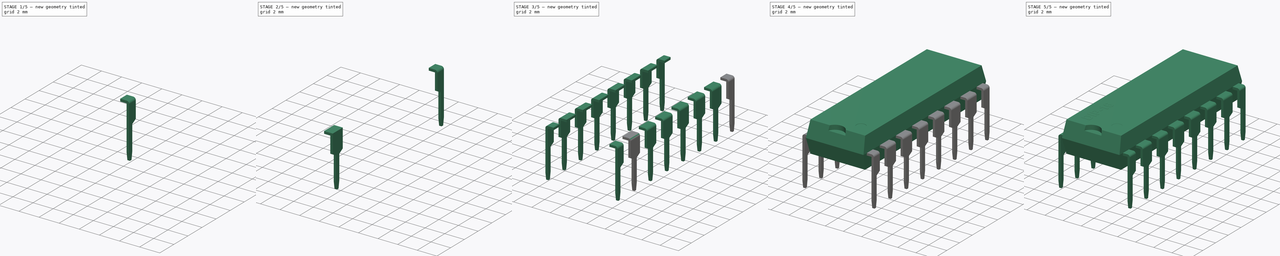
[diagram: build sequence overview — one tinted view per stage of 5, left to right]
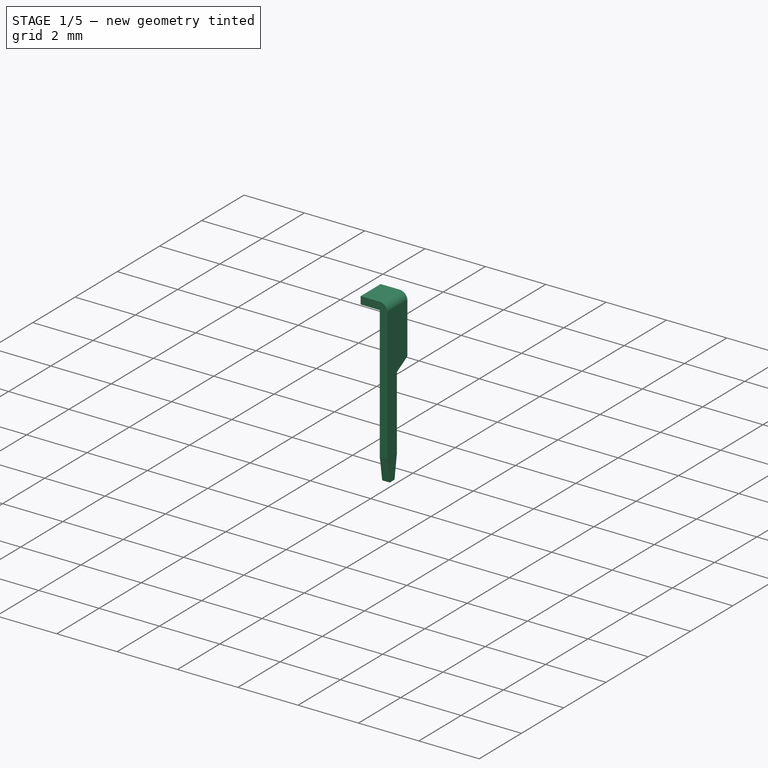
[diagram: stage 1 of 5 — iso view after this stage's code; geometry added in this stage tinted green]
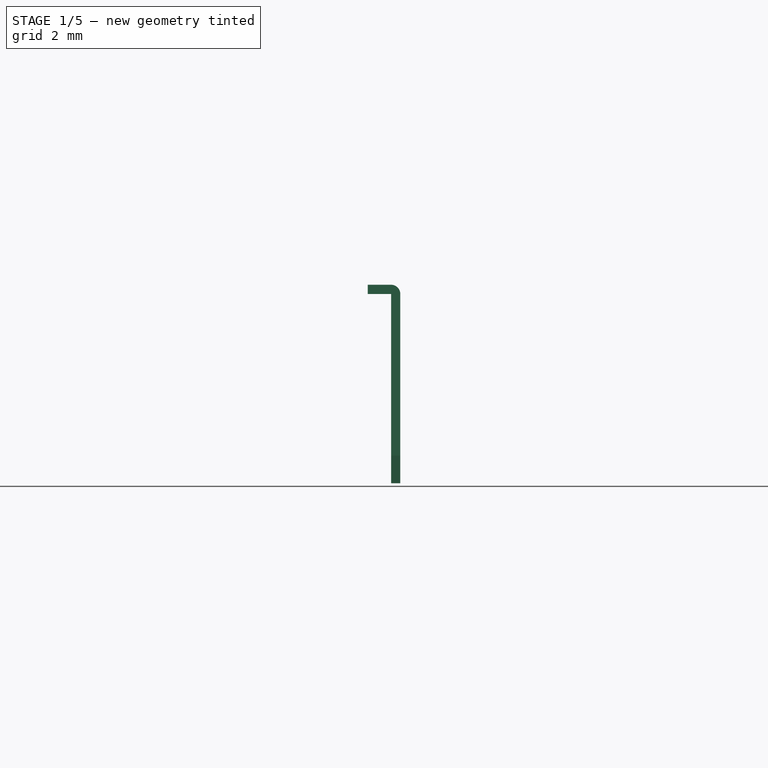
[diagram: stage 1 of 5 — front view after this stage's code; geometry added in this stage tinted green]
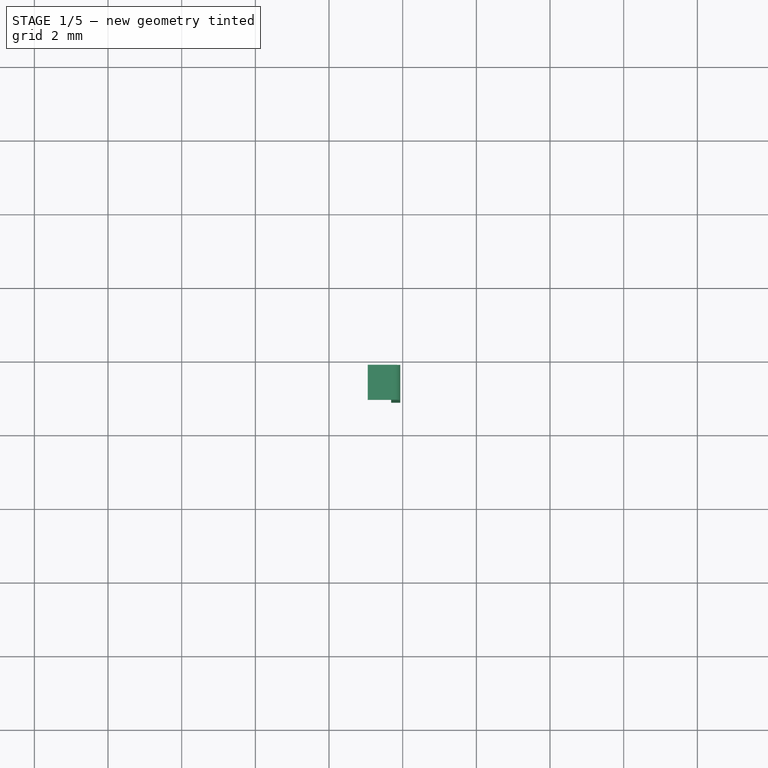
[diagram: stage 1 of 5 — top view after this stage's code; geometry added in this stage tinted green]
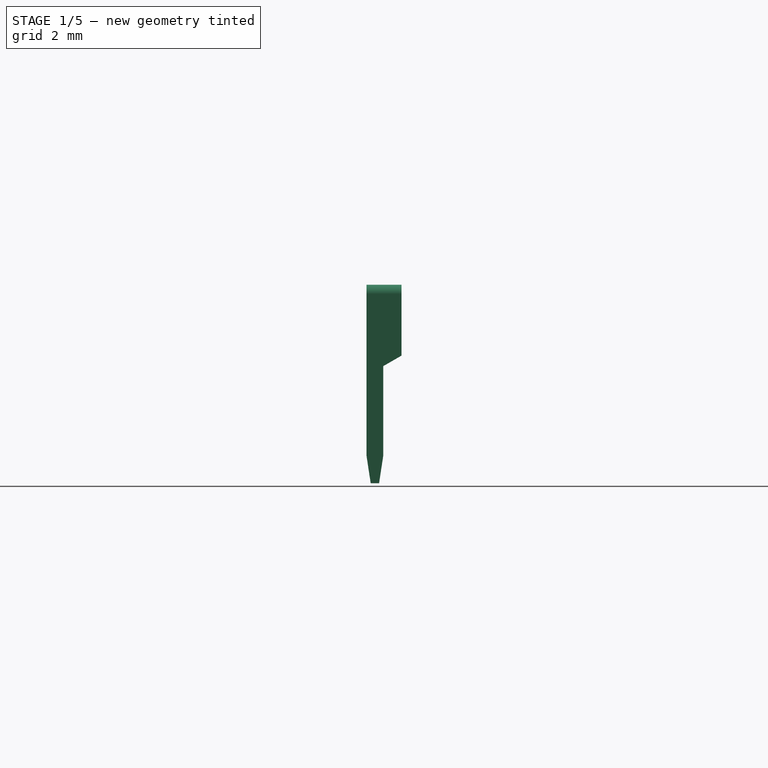
[diagram: stage 1 of 5 — right view after this stage's code; geometry added in this stage tinted green]
FCSTD DOCUMENT  (FreeCAD 0.19R16945 (Git))
Label: Package_N_DIP-16
License: All rights reserved
LicenseURL: http://en.wikipedia.org/wiki/All_rights_reserved
objects: Sketcher::SketchObject×10, PartDesign::Pad×5, PartDesign::Body×4, PartDesign::Pocket×2, PartDesign::Fillet×2, Part::FeaturePython×2, Part::MultiFuse×2, PartDesign::AdditiveLoft×1, PartDesign::ShapeBinder×1, Part::Part2DObjectPython×1, Part::Extrusion×1, Part::Mirroring×1
note: 40 computed .brp shape members not serialized (recipe doc carries the construction recipe); baked Part::Feature solids carry a one-line shape summary decoded from their .brp

FEATURE [Sketcher::SketchObject] Sketch006
  AttachmentOffset = pos=(-8.89,0,3.81) rot=(0,0,1;0rad)
  MapMode = 5
  Placement = pos=(3.81,-8.89,2.8e-15) rot=(0.57735,0.57735,0.57735;2.0944rad)
  Support = -> [YZ_Plane002]
  expr: AttachmentOffset.Base.z = 7.62 / 2
  expr: AttachmentOffset.Base.x = -(2.54 / 2) - 3 * 2.54
  expr: Constraints[19] = Sketch004.Constraints[23]
  expr: Constraints[22] = (0.38 + 0.53) / 4
  expr: Constraints[17] = (0.76 + 1.14) / 2
  expr: Constraints[5] = Sketch004.Constraints[5]
  expr: Constraints[2] = Sketch004.Constraints[2]
  sketch-geometry (9):
    g0: LineSegment StartX=-0.2275 StartY=-3e-16 StartZ=0 EndX=-0.2275 EndY=-2.43 EndZ=0
    g1: LineSegment StartX=0.2275 StartY=-2.43 StartZ=0 EndX=0.2275 EndY=0 EndZ=0
    g2: LineSegment StartX=-0.2275 StartY=2.21 StartZ=0 EndX=0.7225 EndY=2.21 EndZ=0
    g3: LineSegment StartX=-0.2275 StartY=-2.43 StartZ=0 EndX=-0.11375 EndY=-3.18 EndZ=0
    g4: LineSegment StartX=-0.11375 StartY=-3.18 StartZ=0 EndX=0.11375 EndY=-3.18 EndZ=0
    g5: LineSegment StartX=0.11375 StartY=-3.18 StartZ=0 EndX=0.2275 EndY=-2.43 EndZ=0
    g6: LineSegment StartX=-0.2275 StartY=-3e-16 StartZ=0 EndX=-0.2275 EndY=2.21 EndZ=0
    g7: LineSegment StartX=0.2275 StartY=0 StartZ=0 EndX=0.7225 EndY=0.285788 EndZ=0
    g8: LineSegment StartX=0.7225 StartY=0.285788 StartZ=0 EndX=0.7225 EndY=2.21 EndZ=0
  constraints (25):
    c: Vertical(g0)
    c: Vertical(g1)
    c: DistanceX(g0,g1) = 0.455
    c: Equal(g0,g1)
    c: PointOnObject(g7,g-1)
    c: DistanceY(g0,g2) = 2.21
    c: Symmetric(g1,g0,g-2)
    c: Coincident(g0,g3)
    c: Coincident(g3,g4)
    c: Coincident(g4,g5)
    c: Coincident(g5,g1)
    c: Symmetric(g4,g3,g-2)
    c: Coincident(g7,g8)
    c: Coincident(g8,g2)
    c: Vertical(g8)
    c: Vertical(g6)
    c: Coincident(g2,g6)
    c: DistanceX(g2,g2) = 0.95
    c: Coincident(g1,g7)
    c: DistanceY(g3,g0) = 3.18
    c: Coincident(g6,g0)
    c: Angle(g-1,g7) = 0.523599
    c: DistanceX(g4,g4) = 0.2275
    c: DistanceY(g4,g1) = 0.75
    c: Horizontal(g2)
FEATURE [PartDesign::Pad] Pad002
  Length = 0.25
  Length2 = 100
  Midplane = true
  Placement = pos=(0,0,0) rot=(0.57735,0.57735,0.57735;2.0944rad)
  Profile = -> Sketch006
  Type = 0
FEATURE [PartDesign::Pad] Pad004
  BaseFeature = -> Pad002
  Length = 0.635
  Length2 = 100
  Placement = pos=(0,0,0) rot=(0.57735,0.57735,0.57735;2.0944rad)
  Profile = -> Sketch007
  Refine = true
  Type = 0
FEATURE [PartDesign::Fillet] Fillet
  Base = -> Pad004 [Edge17]
  BaseFeature = -> Pad004
  Placement = pos=(0,0,0) rot=(0.57735,0.57735,0.57735;2.0944rad)
  Radius = 0.25
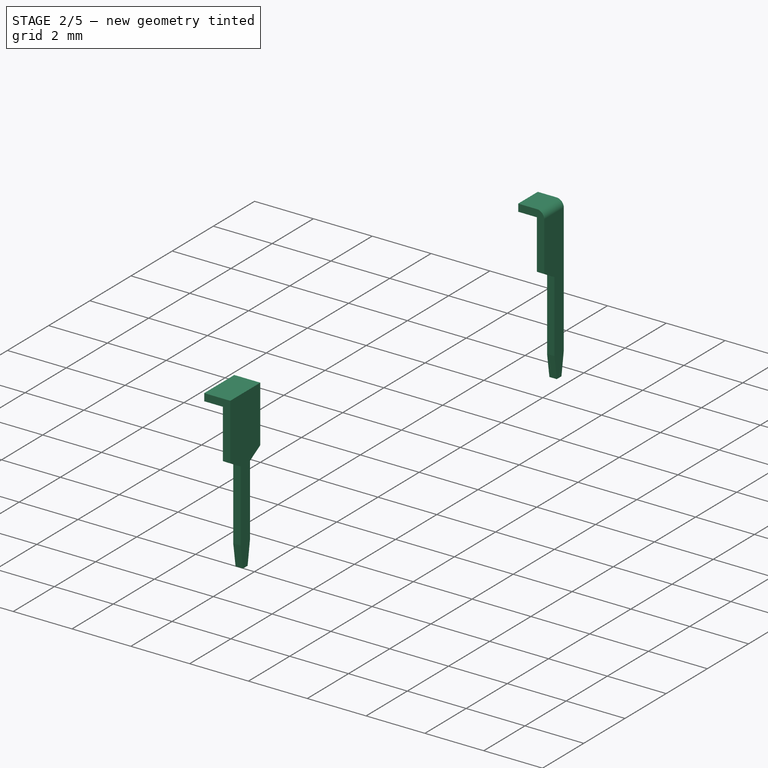
[diagram: stage 2 of 5 — iso view after this stage's code; geometry added in this stage tinted green]
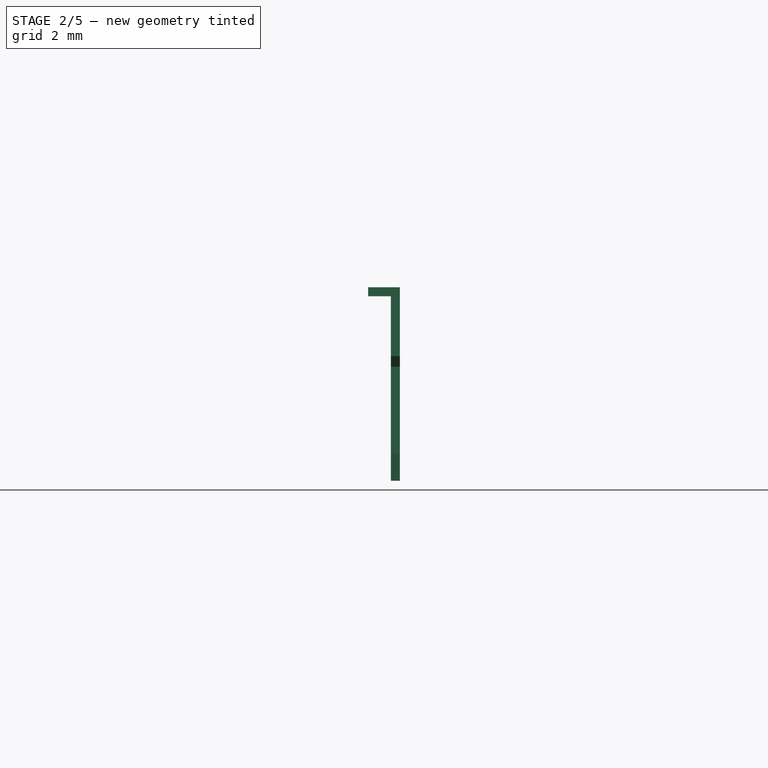
[diagram: stage 2 of 5 — front view after this stage's code; geometry added in this stage tinted green]
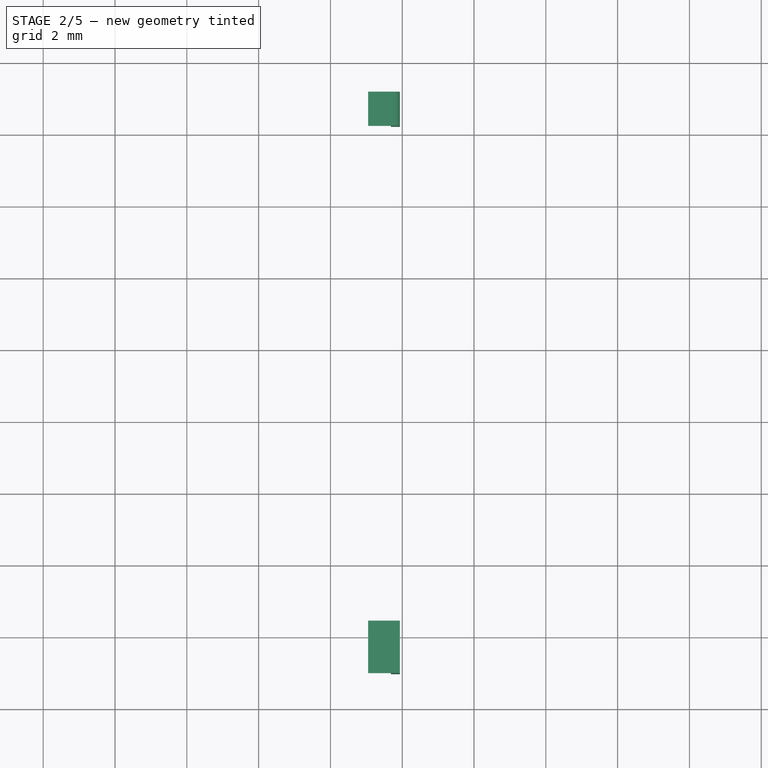
[diagram: stage 2 of 5 — top view after this stage's code; geometry added in this stage tinted green]
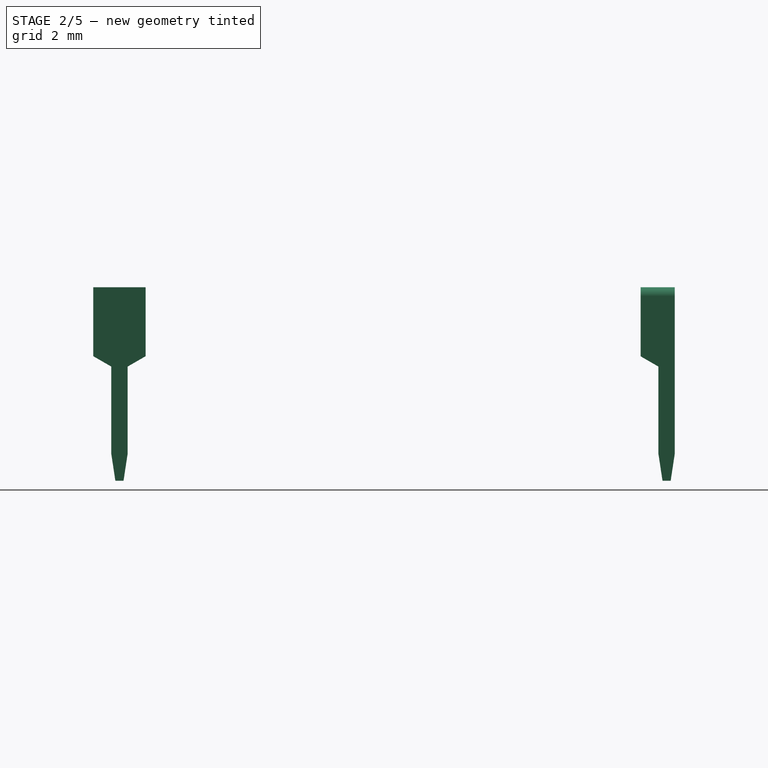
[diagram: stage 2 of 5 — right view after this stage's code; geometry added in this stage tinted green]
FEATURE [Sketcher::SketchObject] Sketch004
  AttachmentOffset = pos=(-6.35,0,3.81) rot=(0,0,1;0rad)
  MapMode = 5
  Placement = pos=(3.81,-6.35,2.3e-15) rot=(0.57735,0.57735,0.57735;2.0944rad)
  Support = -> [YZ_Plane001]
  expr: AttachmentOffset.Base.x = -(2.5 * 2.54)
  expr: Constraints[25] = (0.38 + 0.53) / 4
  expr: Constraints[18] = (1.14 + 1.78) / 2
  expr: AttachmentOffset.Base.z = 7.62 / 2
  expr: Constraints[5] = 0.51 + 3.4 / 2
  expr: Constraints[2] = (0.38 + 0.53) / 2
  sketch-geometry (10):
    g0: LineSegment StartX=-0.2275 StartY=2e-16 StartZ=0 EndX=-0.2275 EndY=-2.43 EndZ=0
    g1: LineSegment StartX=0.2275 StartY=-2.43 StartZ=0 EndX=0.2275 EndY=0 EndZ=0
    g2: LineSegment StartX=-0.73 StartY=2.21 StartZ=0 EndX=0.73 EndY=2.21 EndZ=0
    g3: LineSegment StartX=-0.2275 StartY=-2.43 StartZ=0 EndX=-0.11375 EndY=-3.18 EndZ=0
    g4: LineSegment StartX=-0.11375 StartY=-3.18 StartZ=0 EndX=0.11375 EndY=-3.18 EndZ=0
    g5: LineSegment StartX=0.11375 StartY=-3.18 StartZ=0 EndX=0.2275 EndY=-2.43 EndZ=0
    g6: LineSegment StartX=-0.2275 StartY=2e-16 StartZ=0 EndX=-0.73 EndY=0.290119 EndZ=0
    g7: LineSegment StartX=-0.73 StartY=0.290119 StartZ=0 EndX=-0.73 EndY=2.21 EndZ=0
    g8: LineSegment StartX=0.2275 StartY=0 StartZ=0 EndX=0.73 EndY=0.290119 EndZ=0
    g9: LineSegment StartX=0.73 StartY=0.290119 StartZ=0 EndX=0.73 EndY=2.21 EndZ=0
  constraints (27):
    c: Vertical(g0)
    c: Vertical(g1)
    c: DistanceX(g0,g1) = 0.455
    c: Equal(g0,g1)
    c: PointOnObject(g8,g-1)
    c: DistanceY(g6,g2) = 2.21
    c: Symmetric(g1,g0,g-2)
    c: Coincident(g0,g3)
    c: Coincident(g3,g4)
    c: Coincident(g4,g5)
    c: Coincident(g5,g1)
    c: Symmetric(g4,g3,g-2)
    c: Coincident(g6,g7)
    c: Coincident(g8,g9)
    c: Coincident(g9,g2)
    c: Vertical(g9)
    c: Vertical(g7)
    c: Coincident(g2,g7)
    c: DistanceX(g2,g2) = 1.46
    c: Symmetric(g2,g2,g-2)
    c: Equal(g6,g8)
    c: Coincident(g6,g0)
    c: Coincident(g1,g8)
    c: DistanceY(g3,g0) = 3.18
    c: Angle(g-1,g8) = 0.523599
    c: DistanceX(g4,g4) = 0.2275
    c: DistanceY(g4,g1) = 0.75
FEATURE [PartDesign::Pad] Pad
  Length = 0.25
  Length2 = 100
  Midplane = true
  Placement = pos=(0,0,0) rot=(0.57735,0.57735,0.57735;2.0944rad)
  Profile = -> Sketch004
  Type = 0
FEATURE [Sketcher::SketchObject] Sketch007
  ExternalGeometry = -> [Pad002]
  MapMode = 5
  Placement = pos=(3.685,-1e-16,8e-16) rot=(0.57735,0.57735,-0.57735;4.18879rad)
  Support = -> [Pad002]
  sketch-geometry (4):
    g0: LineSegment StartX=-8.1675 StartY=-2.21 StartZ=0 EndX=-9.1175 EndY=-2.21 EndZ=0
    g1: LineSegment StartX=-9.1175 StartY=-2.21 StartZ=0 EndX=-9.1175 EndY=-1.96 EndZ=0
    g2: LineSegment StartX=-9.1175 StartY=-1.96 StartZ=0 EndX=-8.1675 EndY=-1.96 EndZ=0
    g3: LineSegment StartX=-8.1675 StartY=-1.96 StartZ=0 EndX=-8.1675 EndY=-2.21 EndZ=0
  constraints (11):
    c: Coincident(g0,g1)
    c: Coincident(g1,g2)
    c: Coincident(g2,g3)
    c: Coincident(g3,g0)
    c: Horizontal(g0)
    c: Horizontal(g2)
    c: Vertical(g1)
    c: Vertical(g3)
    c: Coincident(g0,g-5)
    c: PointOnObject(g1,g-4)
    c: DistanceY(g1,g1) = 0.25
FEATURE [Sketcher::SketchObject] Sketch008
  ExternalGeometry = -> [Pad]
  MapMode = 5
  Placement = pos=(3.685,-4e-16,8e-16) rot=(0.57735,0.57735,-0.57735;4.18879rad)
  Support = -> [Pad]
  sketch-geometry (4):
    g0: LineSegment StartX=-7.08 StartY=-2.21 StartZ=0 EndX=-5.62 EndY=-2.21 EndZ=0
    g1: LineSegment StartX=-5.62 StartY=-2.21 StartZ=0 EndX=-5.62 EndY=-1.96 EndZ=0
    g2: LineSegment StartX=-5.62 StartY=-1.96 StartZ=0 EndX=-7.08 EndY=-1.96 EndZ=0
    g3: LineSegment StartX=-7.08 StartY=-1.96 StartZ=0 EndX=-7.08 EndY=-2.21 EndZ=0
  constraints (11):
    c: Coincident(g0,g1)
    c: Coincident(g1,g2)
    c: Coincident(g2,g3)
    c: Coincident(g3,g0)
    c: Horizontal(g0)
    c: Horizontal(g2)
    c: Vertical(g1)
    c: Vertical(g3)
    c: Coincident(g0,g-4)
    c: PointOnObject(g1,g-5)
    c: DistanceY(g1,g1) = 0.25
FEATURE [PartDesign::Pad] Pad003
  BaseFeature = -> Pad
  Length = 0.635
  Length2 = 100
  Placement = pos=(0,0,0) rot=(0.57735,0.57735,0.57735;2.0944rad)
  Profile = -> Sketch008
  Refine = true
  Type = 0
  expr: Length = 7.62 / 2 - (6.1 + 6.6) / 2 / 2
FEATURE [Part::Mirroring] Part__Mirroring  label="Fillet (Mirror #1)"
  Base = (0,0,0)
  Normal = (0,1,0)
  Source = -> Fillet
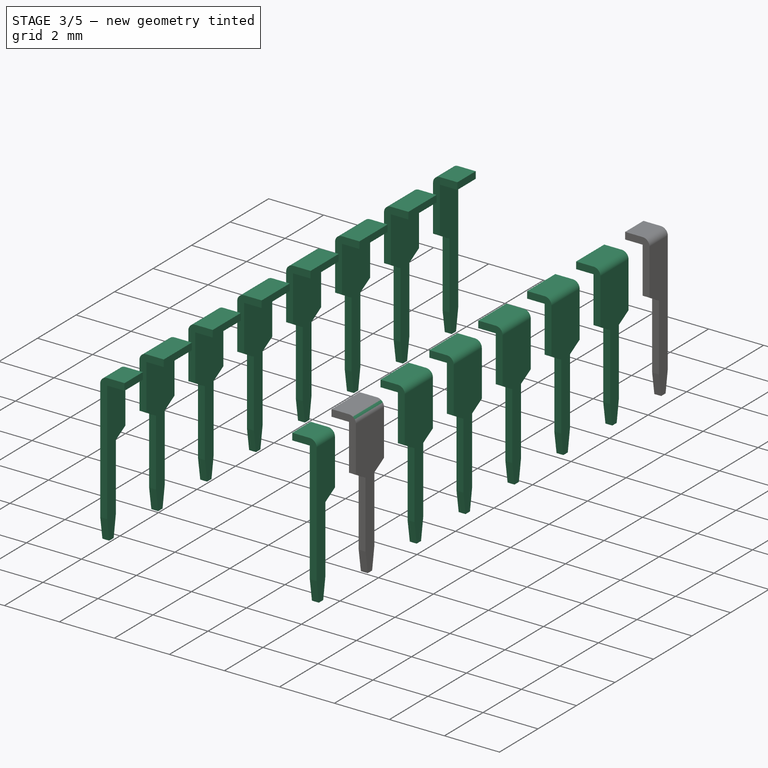
[diagram: stage 3 of 5 — iso view after this stage's code; geometry added in this stage tinted green]
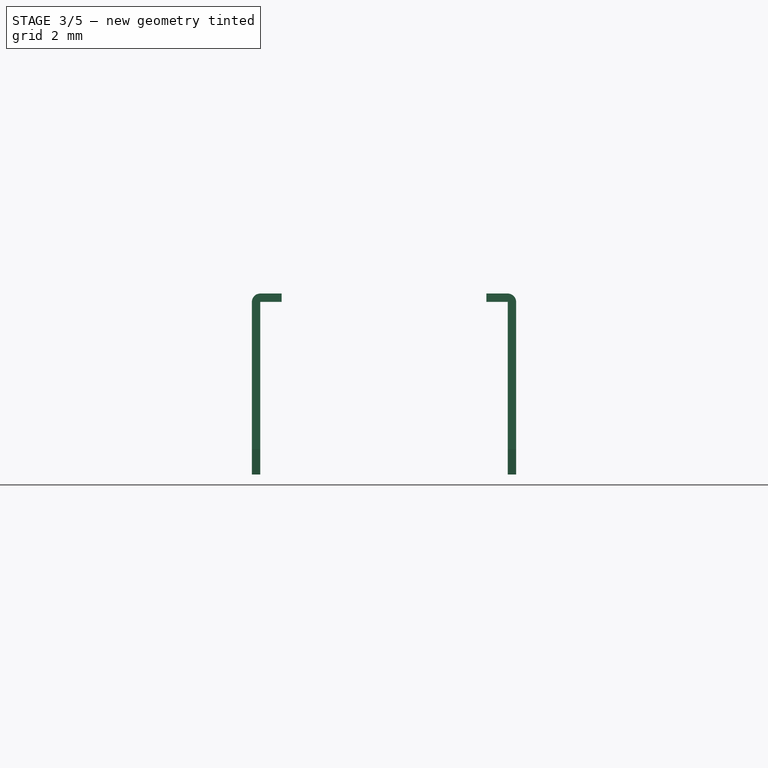
[diagram: stage 3 of 5 — front view after this stage's code; geometry added in this stage tinted green]
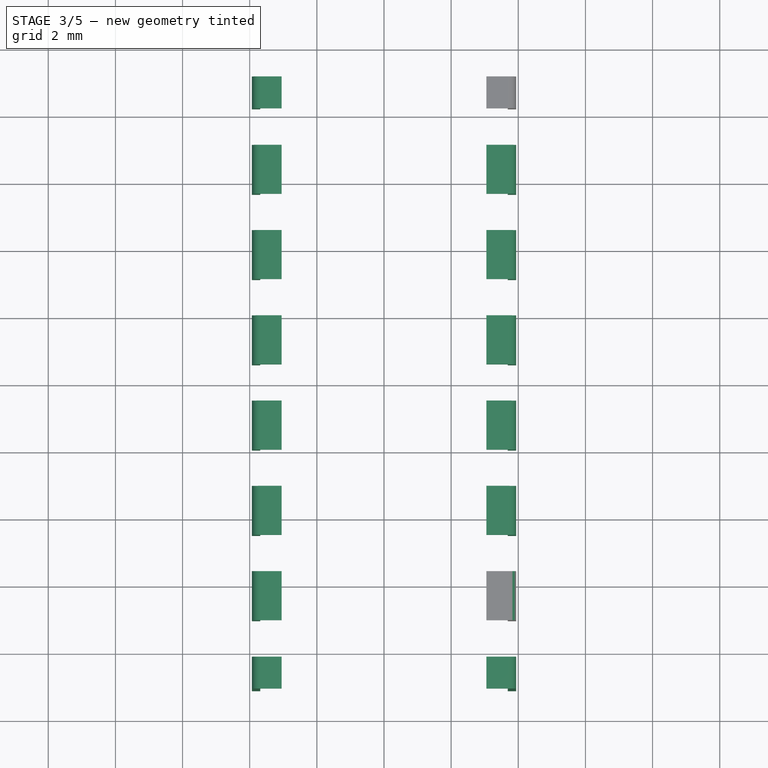
[diagram: stage 3 of 5 — top view after this stage's code; geometry added in this stage tinted green]
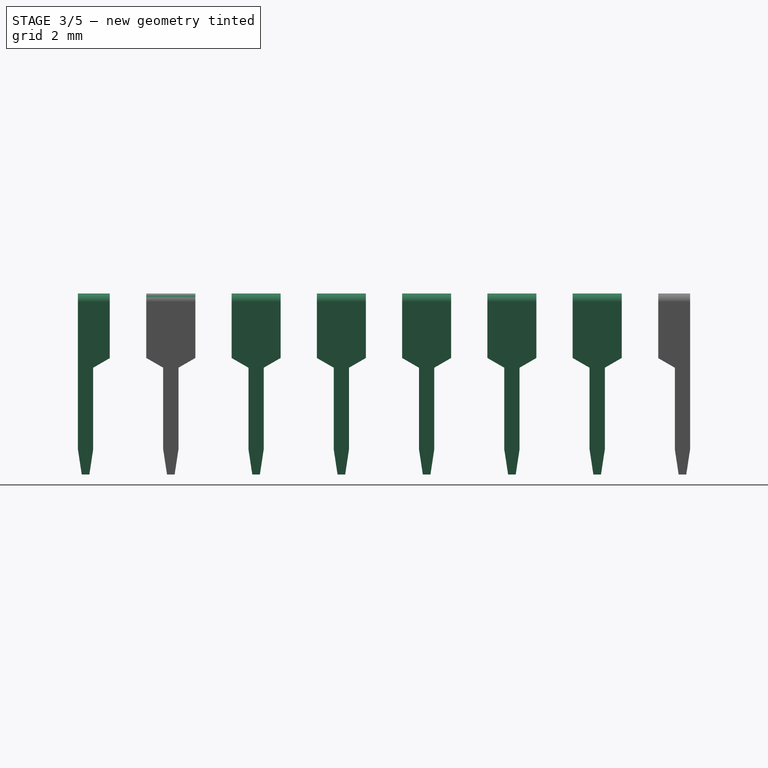
[diagram: stage 3 of 5 — right view after this stage's code; geometry added in this stage tinted green]
FEATURE [PartDesign::Body] Body002  label="PinHalf"
  Group = -> [Sketch006,Pad002,Sketch007,Pad004,Fillet]
  Origin = -> Origin002
  Tip = -> Fillet
FEATURE [PartDesign::Fillet] Fillet001
  Base = -> Pad003 [Edge23]
  BaseFeature = -> Pad003
  Placement = pos=(0,0,0) rot=(0.57735,0.57735,0.57735;2.0944rad)
  Radius = 0.25
FEATURE [PartDesign::Body] Body  label="Package"
  Group = -> [Sketch,Sketch001,Sketch002,AdditiveLoft,Sketch003,Pocket,Sketch010,Pocket001]
  Origin = -> Origin
  Tip = -> Pocket001
FEATURE [Part::FeaturePython] Array  # Draft array (typed FeaturePython)
  Angle = 360
  ArrayType = 0
  Axis = (0,0,1)
  Base = -> Body001
  Center = (0,0,0)
  Fuse = false
  IntervalAxis = (0,0,0)
  IntervalX = (1,0,0)
  IntervalY = (0,2.54,0)
  IntervalZ = (0,0,1)
  NumberPolar = 1
  NumberX = 1
  NumberY = 6
  NumberZ = 1
FEATURE [Part::MultiFuse] Fusion
  Shapes = -> [Array,Part__Mirroring,Body002]
FEATURE [Part::FeaturePython] Array001  # Draft array (typed FeaturePython)
  Angle = 180
  ArrayType = 1
  Axis = (0,0,1)
  Base = -> Fusion
  Center = (0,0,0)
  Fuse = false
  IntervalAxis = (0,0,0)
  IntervalX = (1,0,0)
  IntervalY = (0,1,0)
  IntervalZ = (0,0,1)
  NumberPolar = 2
  NumberX = 2
  NumberY = 2
  NumberZ = 1
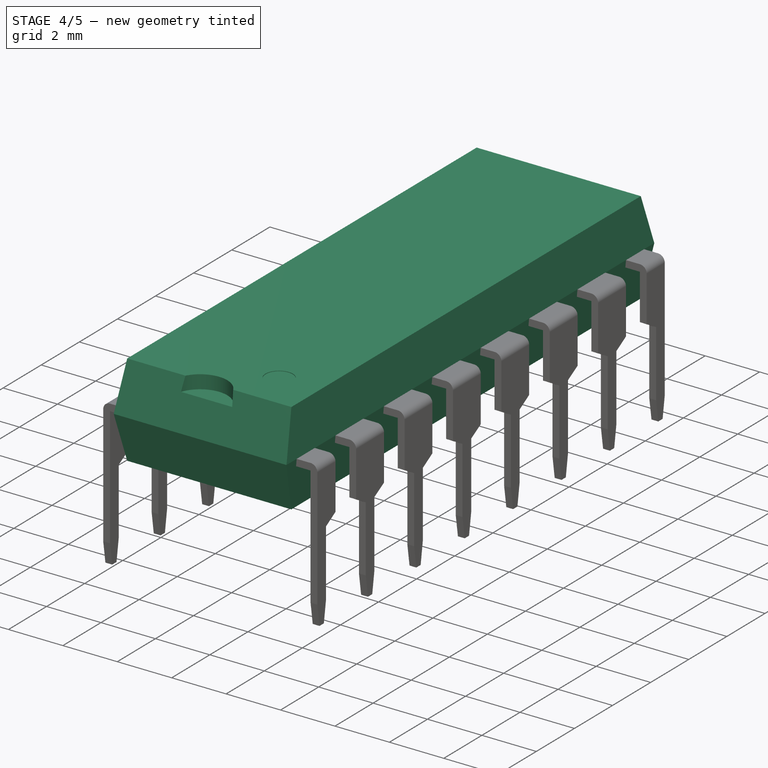
[diagram: stage 4 of 5 — iso view after this stage's code; geometry added in this stage tinted green]
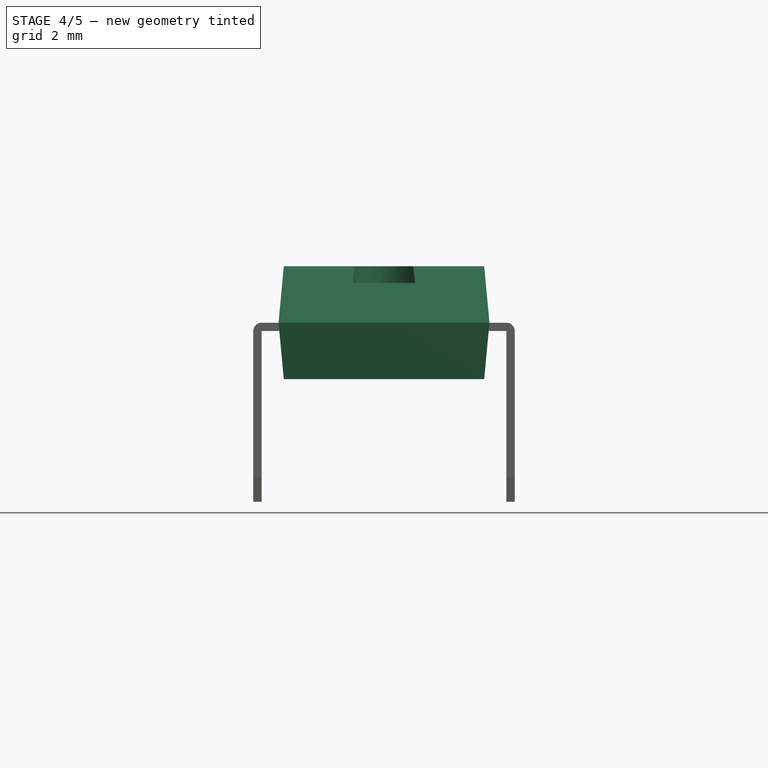
[diagram: stage 4 of 5 — front view after this stage's code; geometry added in this stage tinted green]
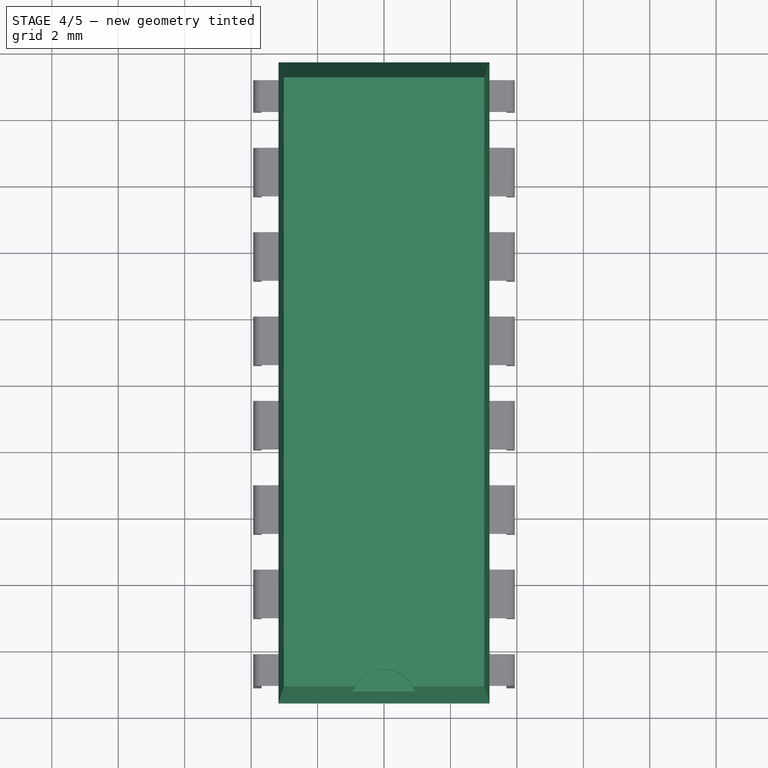
[diagram: stage 4 of 5 — top view after this stage's code; geometry added in this stage tinted green]
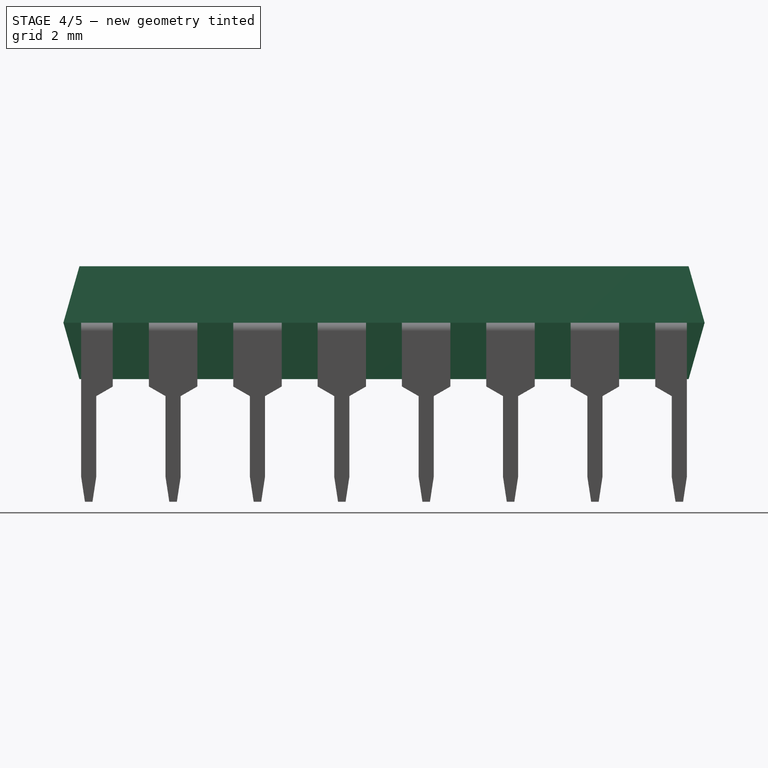
[diagram: stage 4 of 5 — right view after this stage's code; geometry added in this stage tinted green]
FEATURE [Sketcher::SketchObject] Sketch  label="Mid"
  AttachmentOffset = pos=(0,0,2.21) rot=(0,0,1;0rad)
  MapMode = 5
  Placement = pos=(0,0,2.21) rot=(0,0,1;0rad)
  Support = -> [XY_Plane]
  expr: AttachmentOffset.Base.z = 0.51 + 3.4 / 2
  expr: Constraints[10] = (6.1 + 6.6) / 2
  expr: Constraints[9] = (18.92 + 19.69) / 2
  sketch-geometry (4):
    g0: LineSegment StartX=-3.175 StartY=-9.6525 StartZ=0 EndX=3.175 EndY=-9.6525 EndZ=0
    g1: LineSegment StartX=3.175 StartY=-9.6525 StartZ=0 EndX=3.175 EndY=9.6525 EndZ=0
    g2: LineSegment StartX=3.175 StartY=9.6525 StartZ=0 EndX=-3.175 EndY=9.6525 EndZ=0
    g3: LineSegment StartX=-3.175 StartY=9.6525 StartZ=0 EndX=-3.175 EndY=-9.6525 EndZ=0
  constraints (11):
    c: Coincident(g0,g1)
    c: Coincident(g1,g2)
    c: Coincident(g2,g3)
    c: Coincident(g3,g0)
    c: Horizontal(g0)
    c: Horizontal(g2)
    c: Vertical(g1)
    c: Vertical(g3)
    c: Symmetric(g1,g0,g-1)
    c: DistanceY(g1,g1) = 19.305
    c: DistanceX(g2,g2) = 6.35
FEATURE [Sketcher::SketchObject] Sketch001  label="Top"
  AttachmentOffset = pos=(0,0,3.91) rot=(0,0,1;0rad)
  MapMode = 5
  Placement = pos=(0,0,3.91) rot=(0,0,1;0rad)
  Support = -> [XY_Plane]
  expr: AttachmentOffset.Base.z = 0.51 + 3.4
  expr: Constraints[10] = 0.95 * Sketch.Constraints[10]
  expr: Constraints[9] = 0.95 * Sketch.Constraints[9]
  sketch-geometry (4):
    g0: LineSegment StartX=-3.01625 StartY=-9.16987 StartZ=0 EndX=3.01625 EndY=-9.16987 EndZ=0
    g1: LineSegment StartX=3.01625 StartY=-9.16987 StartZ=0 EndX=3.01625 EndY=9.16987 EndZ=0
    g2: LineSegment StartX=3.01625 StartY=9.16987 StartZ=0 EndX=-3.01625 EndY=9.16987 EndZ=0
    g3: LineSegment StartX=-3.01625 StartY=9.16987 StartZ=0 EndX=-3.01625 EndY=-9.16987 EndZ=0
  constraints (11):
    c: Coincident(g0,g1)
    c: Coincident(g1,g2)
    c: Coincident(g2,g3)
    c: Coincident(g3,g0)
    c: Horizontal(g0)
    c: Horizontal(g2)
    c: Vertical(g1)
    c: Vertical(g3)
    c: Symmetric(g1,g0,g-1)
    c: DistanceY(g1,g1) = 18.3397
    c: DistanceX(g2,g2) = 6.0325
FEATURE [Sketcher::SketchObject] Sketch002  label="Bottom"
  AttachmentOffset = pos=(0,0,0.51) rot=(0,0,1;0rad)
  MapMode = 5
  Placement = pos=(0,0,0.51) rot=(0,0,1;0rad)
  Support = -> [XY_Plane]
  expr: Constraints[10] = Sketch001.Constraints[10]
  expr: Constraints[9] = Sketch001.Constraints[9]
  sketch-geometry (4):
    g0: LineSegment StartX=-3.01625 StartY=-9.16987 StartZ=0 EndX=3.01625 EndY=-9.16987 EndZ=0
    g1: LineSegment StartX=3.01625 StartY=-9.16987 StartZ=0 EndX=3.01625 EndY=9.16987 EndZ=0
    g2: LineSegment StartX=3.01625 StartY=9.16987 StartZ=0 EndX=-3.01625 EndY=9.16987 EndZ=0
    g3: LineSegment StartX=-3.01625 StartY=9.16987 StartZ=0 EndX=-3.01625 EndY=-9.16987 EndZ=0
  constraints (11):
    c: Coincident(g0,g1)
    c: Coincident(g1,g2)
    c: Coincident(g2,g3)
    c: Coincident(g3,g0)
    c: Horizontal(g0)
    c: Horizontal(g2)
    c: Vertical(g1)
    c: Vertical(g3)
    c: Symmetric(g1,g0,g-1)
    c: DistanceY(g1,g1) = 18.3397
    c: DistanceX(g2,g2) = 6.0325
FEATURE [PartDesign::AdditiveLoft] AdditiveLoft
  Closed = true
  Profile = -> Sketch001
  Ruled = true
  Sections = -> [Sketch,Sketch002]
FEATURE [Sketcher::SketchObject] Sketch003
  ExternalGeometry = -> [AdditiveLoft]
  MapMode = 5
  Placement = pos=(0,0,3.91) rot=(0,0,1;0rad)
  Support = -> [AdditiveLoft]
  sketch-geometry (1):
    g0: Circle CenterX=1.51625 CenterY=-7.66987 CenterZ=0 NormalX=0 NormalY=0 NormalZ=1 AngleXU=0 Radius=0.5
  constraints (3):
    c: DistanceX(g0,g-4) = 1.5
    c: DistanceY(g-4,g0) = 1.5
    c: Radius(g0) = 0.5
FEATURE [PartDesign::Pocket] Pocket
  BaseFeature = -> AdditiveLoft
  Length = 0.02
  Length2 = 100
  Profile = -> Sketch003
  Type = 0
FEATURE [Sketcher::SketchObject] Sketch010
  ExternalGeometry = -> [Pocket]
  MapMode = 5
  Placement = pos=(0,0,3.91) rot=(0,0,1;0rad)
  Support = -> [Pocket]
  sketch-geometry (2):
    g0: ArcOfCircle CenterX=0 CenterY=-9.6525 CenterZ=0 NormalX=0 NormalY=0 NormalZ=1 AngleXU=0 Radius=1 StartAngle=0 EndAngle=3.14159
    g1: LineSegment StartX=-1 StartY=-9.6525 StartZ=0 EndX=1 EndY=-9.6525 EndZ=0
  constraints (6):
    c: PointOnObject(g0,g-4)
    c: PointOnObject(g0,g-4)
    c: Symmetric(g0,g0,g-2)
    c: Coincident(g1,g0)
    c: Coincident(g1,g0)
    c: DistanceX(g1,g1) = 2
FEATURE [PartDesign::Pocket] Pocket001
  BaseFeature = -> Pocket
  Length = 0.5
  Length2 = 100
  Profile = -> Sketch010
  Type = 0
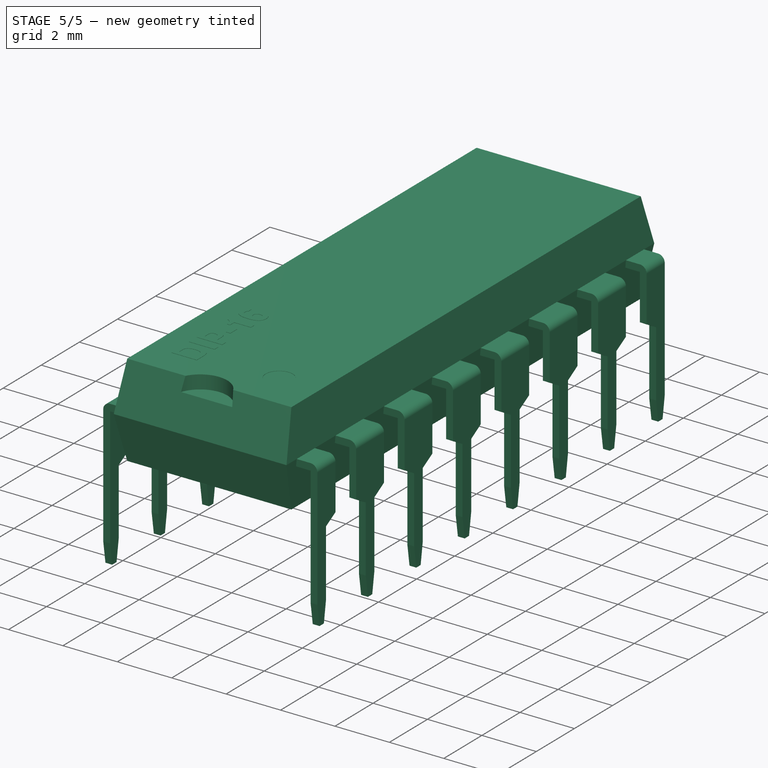
[diagram: stage 5 of 5 — iso view after this stage's code; geometry added in this stage tinted green]
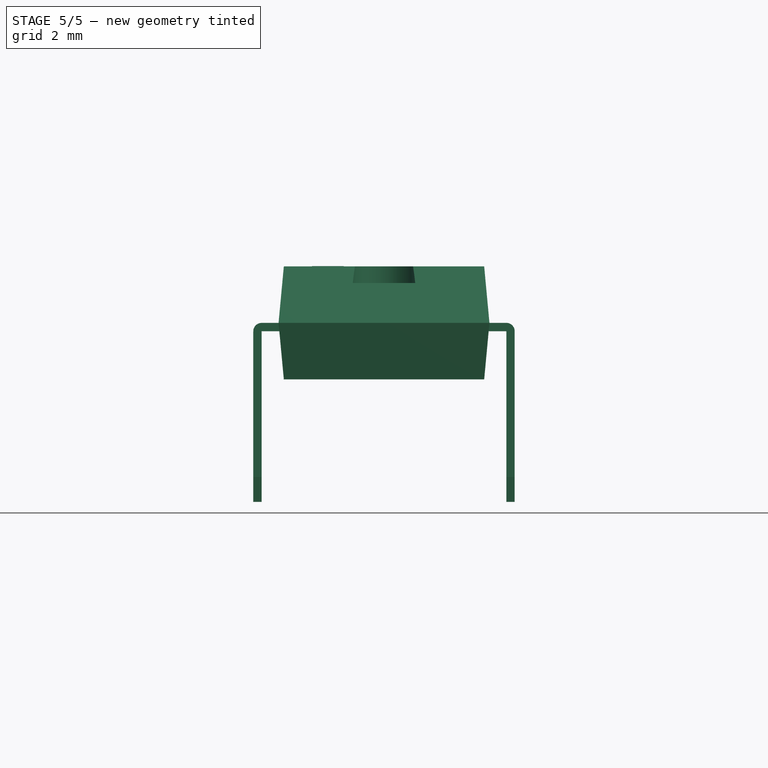
[diagram: stage 5 of 5 — front view after this stage's code; geometry added in this stage tinted green]
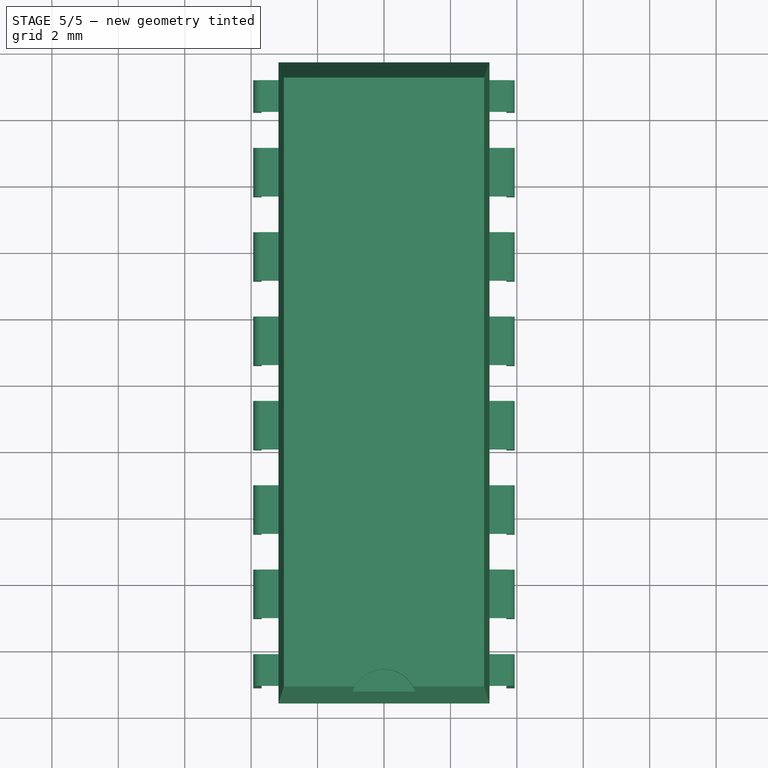
[diagram: stage 5 of 5 — top view after this stage's code; geometry added in this stage tinted green]
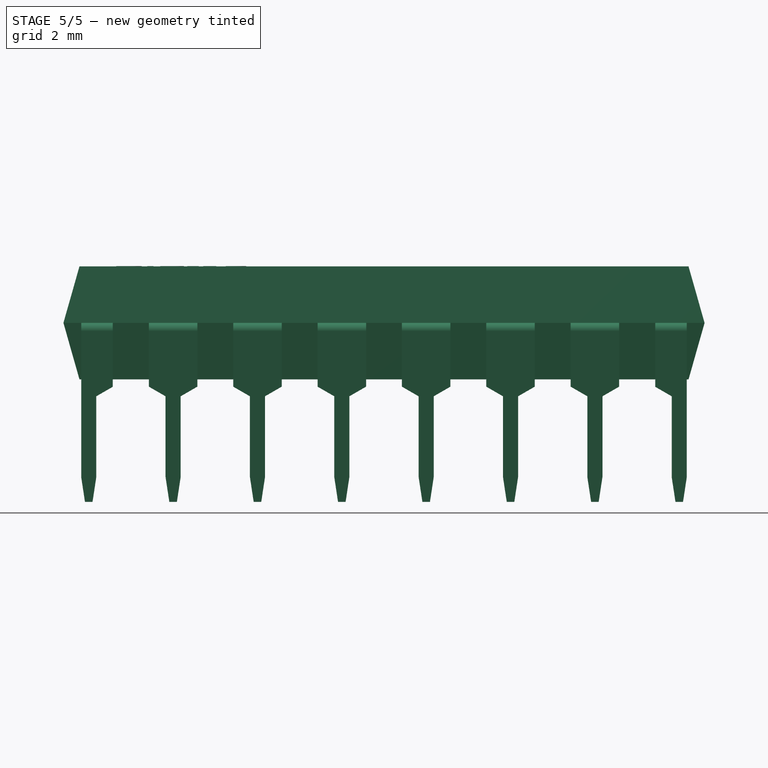
[diagram: stage 5 of 5 — right view after this stage's code; geometry added in this stage tinted green]
FEATURE [PartDesign::Body] Body001  label="PinFull"
  Group = -> [Sketch004,Pad,Sketch008,Pad003,Fillet001]
  Origin = -> Origin001
  Tip = -> Fillet001
FEATURE [PartDesign::ShapeBinder] ShapeBinder
  Placement = pos=(0,0,-0.02) rot=(0,0,1;0rad)
  Support = -> [Pocket]
  TraceSupport = false
FEATURE [Sketcher::SketchObject] Sketch009
  ExternalGeometry = -> [ShapeBinder]
  MapMode = 5
  Placement = pos=(0,0,3.89) rot=(0,0,1;0rad)
  Support = -> [ShapeBinder]
  sketch-geometry (1):
    g0: Circle CenterX=1.51625 CenterY=-7.66987 CenterZ=0 NormalX=0 NormalY=0 NormalZ=1 AngleXU=0 Radius=0.5
  constraints (2):
    c: Coincident(g0,g-3)
    c: Equal(g0,g-3)
FEATURE [PartDesign::Pad] Pad005
  Length = 0.01
  Length2 = 100
  Placement = pos=(0,0,-0.02) rot=(0,0,1;0rad)
  Profile = -> Sketch009
  Type = 0
FEATURE [PartDesign::Body] Body003  label="Marking"
  Group = -> [ShapeBinder,Sketch009,Pad005]
  Origin = -> Origin003
  Tip = -> Pad005
FEATURE [Part::Part2DObjectPython] ShapeString  # Draft 2D object (typed FeaturePython)
  AttachmentOffset = pos=(4.25,-1,0) rot=(0,0,-1;1.5708rad)
  FontFile = <userpath>/Desktop/GitHub/freecad-projects/00-fonts/FreeSansBold.ttf
  MapMode = 6
  Placement = pos=(-1.23375,-8.16987,3.91) rot=(0,0,1;1.5708rad)
  Size = 0.5
  String = DIP-16
  Support = -> [Pocket]
  Tracking = 0
FEATURE [Part::Extrusion] Extrude
  Base = -> ShapeString
  Dir = (0,0,1)
  DirMode = 2
  FaceMakerClass = Part::FaceMakerBullseye
  LengthFwd = 0.01
  LengthRev = 0
  Solid = false
  Symmetric = false
FEATURE [Part::MultiFuse] Fusion001
  Shapes = -> [Array001,Extrude,Body,Body003]
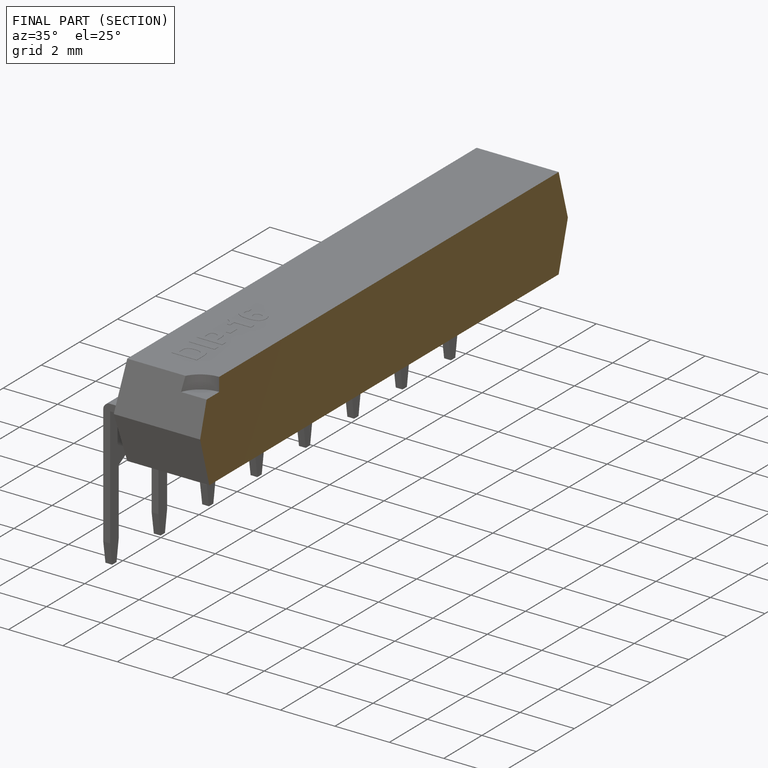
[diagram: finished part — half-section view (interior)]
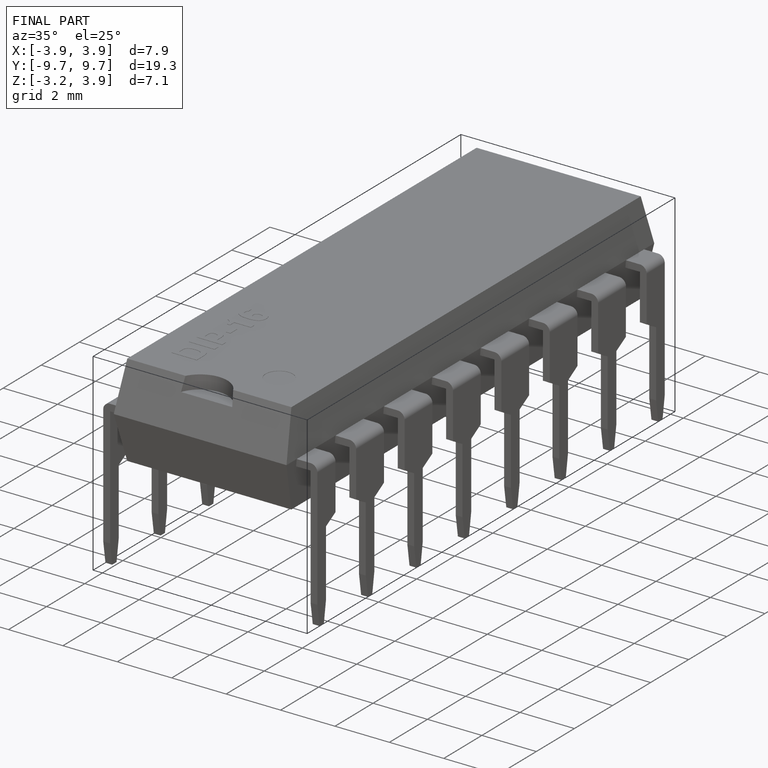
[diagram: finished part — iso view with bounding-box wireframe]
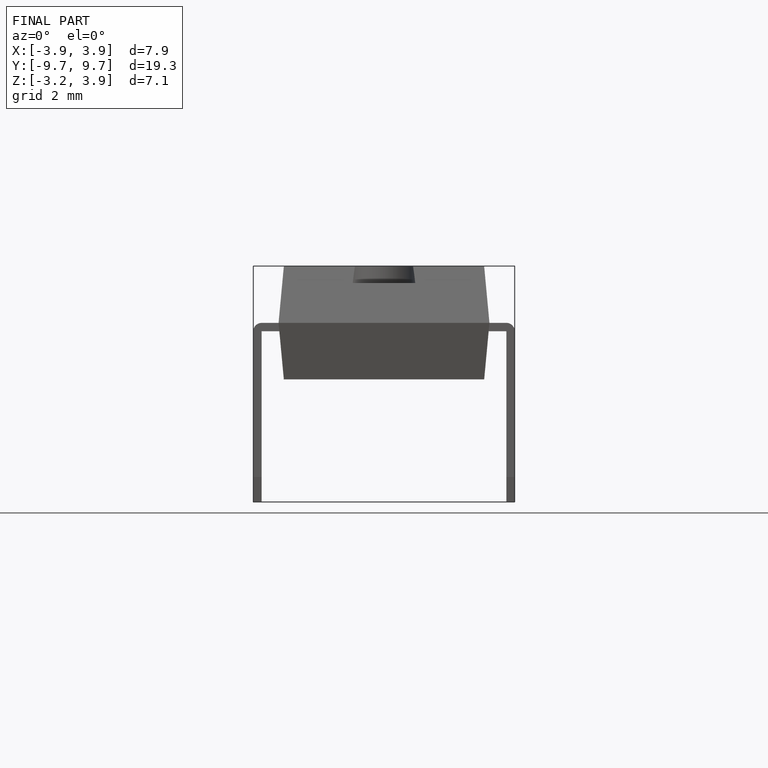
[diagram: finished part — front view with bounding-box wireframe]
